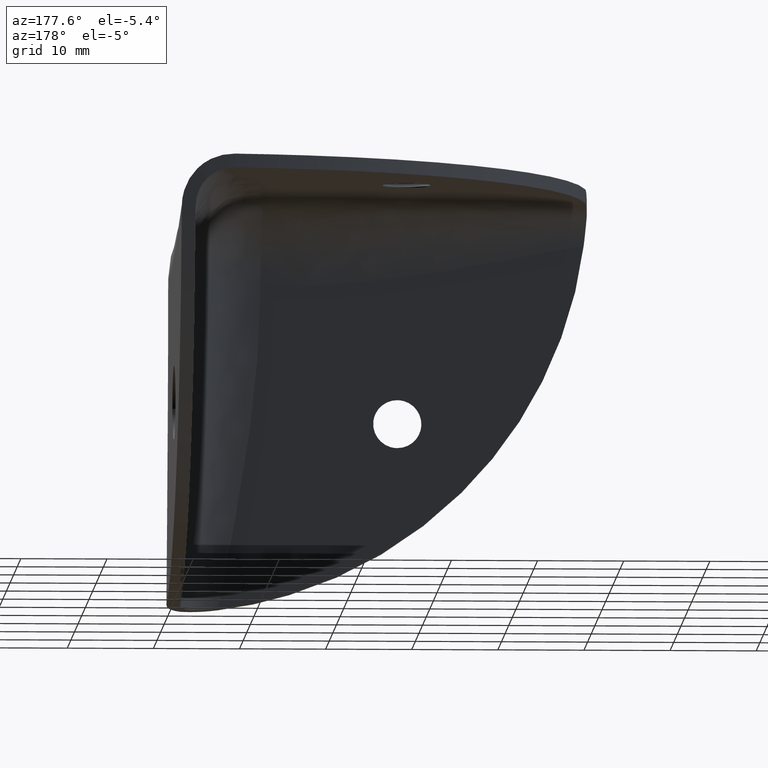
[diagram: clean part render]
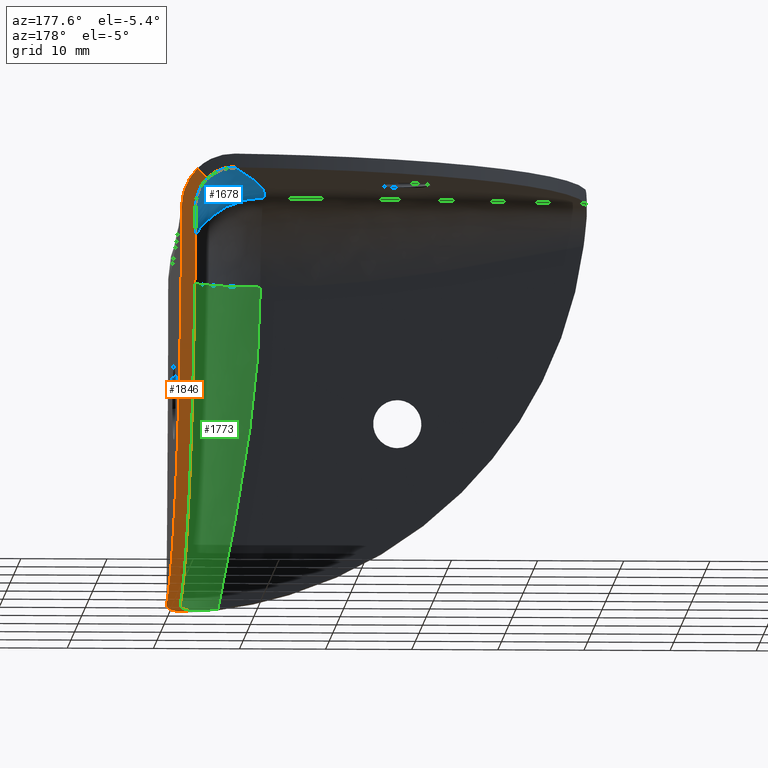
[diagram: same view with three faces highlighted in distinct colors, each labeled with its STEP entity id]
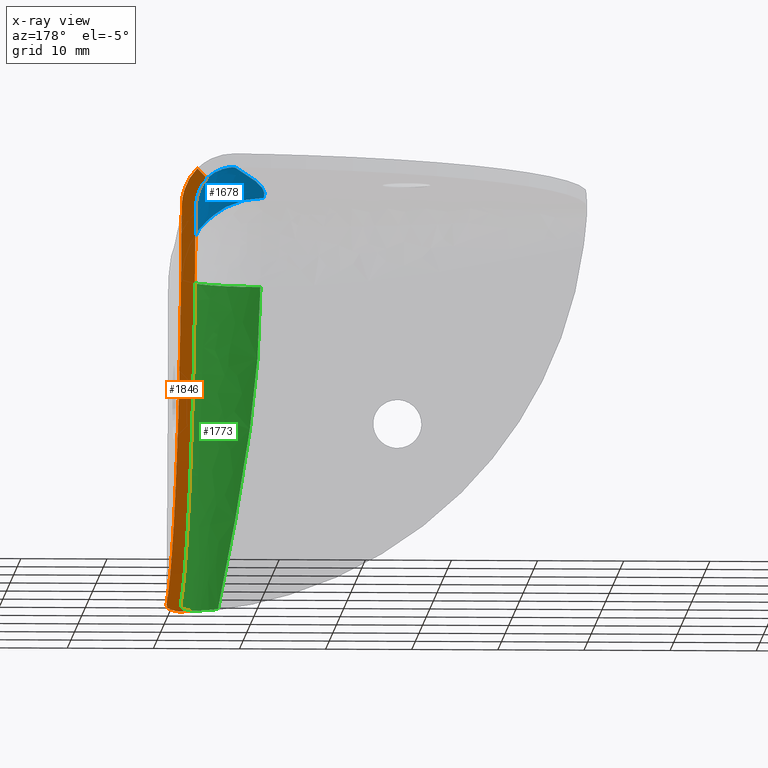
[diagram: x-ray of the same camera — body ghosted, the three highlighted faces saturated]
A machine part, auxiliary view with three faces highlighted in distinct colors.
The next image is the same camera in x-ray (body ghosted, the three faces saturated) — at least one of them is partly hidden behind the body in this view.
Their STEP definitions:

[orange] entity #1846 — the highlighted face is a freeform B-spline surface patch.
#1089=CARTESIAN_POINT('',(0.0,6.171573241230070,0.361694426275122));
#1090=VERTEX_POINT('',#1089);
#1091=CARTESIAN_POINT('',(-1.787017889713275,1.787017889713065,0.006370814517681));
#1092=VERTEX_POINT('',#1091);
#1093=CARTESIAN_POINT('',(0.0,6.171573241230070,0.361694426275120));
#1094=CARTESIAN_POINT('',(3.811648E-018,5.765225800642737,0.310318890520815));
#1095=CARTESIAN_POINT('',(-0.037825961681421,5.364675682616409,0.264850308663229));
#1096=CARTESIAN_POINT('',(-0.151043309121893,4.772576887062907,0.204794528968002));
#1097=CARTESIAN_POINT('',(-0.198253625120499,4.576674703107338,0.186135452911814));
#1098=CARTESIAN_POINT('',(-0.283799129057972,4.285114519458263,0.160107344394750));
#1099=CARTESIAN_POINT('',(-0.314773355935752,4.188310656096630,0.151758107257319));
#1100=CARTESIAN_POINT('',(-0.381780867085784,3.995493889272083,0.135700521255313));
#1101=CARTESIAN_POINT('',(-0.417621305122688,3.900057184478893,0.128040828110907));
#1102=CARTESIAN_POINT('',(-0.607641946293509,3.429592338959095,0.091633003630207));
#1103=CARTESIAN_POINT('',(-0.794674716813616,3.072565172450305,0.068366570746644));
#1104=CARTESIAN_POINT('',(-1.127685643311944,2.566129723612154,0.040318470146774));
#1105=CARTESIAN_POINT('',(-1.247488678062399,2.402199889963529,0.032115772756458));
#1106=CARTESIAN_POINT('',(-1.440936848726538,2.163948242052584,0.021319898137595));
#1107=CARTESIAN_POINT('',(-1.507517149028760,2.086060887909089,0.017984650431483));
#1108=CARTESIAN_POINT('',(-1.644376988174122,1.933936801425587,0.011817975053551));
#1109=CARTESIAN_POINT('',(-1.714731345938658,1.859607161586465,0.008982322632971));
#1110=CARTESIAN_POINT('',(-1.787017889713275,1.787017889713065,0.006370814517681));
#1111=B_SPLINE_CURVE_WITH_KNOTS('',3,(#1093,#1094,#1095,#1096,#1097,#1098,#1099,#1100,#1101,#1102,#1103,#1104,#1105,#1106,#1107,#1108,#1109,#1110),.UNSPECIFIED.,.F.,.U.,(4,2,2,2,2,2,2,2,4),(0.0,0.250000000000000,0.375000000000000,0.437500000000000,0.500000000000000,0.750000000000000,0.875000000000000,0.937500000000000,1.0),.UNSPECIFIED.);
#1112=EDGE_CURVE('',#1090,#1092,#1111,.T.);
#1258=CARTESIAN_POINT('',(-1.787017889713220,48.993629185482199,47.212982110286902));
#1259=VERTEX_POINT('',#1258);
#1289=CARTESIAN_POINT('',(0.0,48.638305573724800,42.828426758769943));
#1290=VERTEX_POINT('',#1289);
#1298=CARTESIAN_POINT('',(-1.787017889713220,48.993629185482199,47.212982110286902));
#1299=CARTESIAN_POINT('',(-1.498166744652732,48.983193811620772,46.922921288384707));
#1300=CARTESIAN_POINT('',(-1.243456440835818,48.969326293050493,46.608903361447140));
#1301=CARTESIAN_POINT('',(-0.910254561642432,48.941419643462297,46.103704322942512));
#1302=CARTESIAN_POINT('',(-0.807390679276624,48.930929862106687,45.929567406641503));
#1303=CARTESIAN_POINT('',(-0.665622032419021,48.913123437820467,45.659614546134911));
#1304=CARTESIAN_POINT('',(-0.620341377787739,48.906823354246477,45.567911068069073));
#1305=CARTESIAN_POINT('',(-0.534693213898582,48.893581953755529,45.382965288554352));
#1306=CARTESIAN_POINT('',(-0.494341028246447,48.886647773631509,45.289798557933352));
#1307=CARTESIAN_POINT('',(-0.304643336238732,48.850355499663728,44.820587091258091));
#1308=CARTESIAN_POINT('',(-0.191177692169317,48.816142147734439,44.434498624151608));
#1309=CARTESIAN_POINT('',(-0.095764144555557,48.765966512150307,43.938995724072022));
#1310=CARTESIAN_POINT('',(-0.079021341737152,48.755560307242668,43.839245040477422));
#1311=CARTESIAN_POINT('',(-0.050254967596804,48.733979300421517,43.638434331225831));
#1312=CARTESIAN_POINT('',(-0.038232320396408,48.722793773603492,43.537290271417760));
#1313=CARTESIAN_POINT('',(-0.009501825970828,48.688296454444412,43.234041921480440));
#1314=CARTESIAN_POINT('',(-3.764591E-019,48.663973618821089,43.031444484553667));
#1315=CARTESIAN_POINT('',(-8.994743E-032,48.638305573724800,42.828426758769943));
#1316=B_SPLINE_CURVE_WITH_KNOTS('',3,(#1298,#1299,#1300,#1301,#1302,#1303,#1304,#1305,#1306,#1307,#1308,#1309,#1310,#1311,#1312,#1313,#1314,#1315),.UNSPECIFIED.,.F.,.U.,(4,2,2,2,2,2,2,2,4),(0.0,0.250000000000006,0.375000000000009,0.437500000000011,0.500000000000012,0.750000000000007,0.812500000000005,0.875000000000003,1.0),.UNSPECIFIED.);
#1317=EDGE_CURVE('',#1259,#1290,#1316,.T.);
#1613=CARTESIAN_POINT('',(-1.600000000000045,48.638305573724800,42.828426758769893));
#1614=VERTEX_POINT('',#1613);
#1615=CARTESIAN_POINT('',(-2.921517854645630,48.939642014672401,46.078482145354400));
#1616=VERTEX_POINT('',#1615);
#1617=CARTESIAN_POINT('',(-1.600000000000000,48.638305573724800,42.828426758769893));
#1618=CARTESIAN_POINT('',(-1.600000000000000,48.676399125952223,43.129722253273670));
#1619=CARTESIAN_POINT('',(-1.628068771047924,48.711090758160537,43.426609868739099));
#1620=CARTESIAN_POINT('',(-1.711874550237434,48.758422107328393,43.865354029422349));
#1621=CARTESIAN_POINT('',(-1.746804400192824,48.773413707032567,44.010496811412239));
#1622=CARTESIAN_POINT('',(-1.810059572723921,48.794764406540949,44.226485710960119));
#1623=CARTESIAN_POINT('',(-1.832957732101233,48.801691813472480,44.298193952743752));
#1624=CARTESIAN_POINT('',(-1.882481785787459,48.815174123604109,44.441016307222839));
#1625=CARTESIAN_POINT('',(-1.908998395906818,48.821696642976498,44.511793174033564));
#1626=CARTESIAN_POINT('',(-2.049509457692358,48.853089127616009,44.860526206572430));
#1627=CARTESIAN_POINT('',(-2.187766650009441,48.874508228740297,45.125182611053447));
#1628=CARTESIAN_POINT('',(-2.433896886023942,48.902158938780488,45.500603336545268));
#1629=CARTESIAN_POINT('',(-2.522439481897943,48.910626162689368,45.622126229844092));
#1630=CARTESIAN_POINT('',(-2.665411761968103,48.922311389294727,45.798744133314173));
#1631=CARTESIAN_POINT('',(-2.714693204422323,48.926030025310013,45.856569523243252));
#1632=CARTESIAN_POINT('',(-2.815958730771519,48.933097360572283,45.969456231054508));
#1633=CARTESIAN_POINT('',(-2.868020416633476,48.936452549680951,46.024614982949750));
#1634=CARTESIAN_POINT('',(-2.921517854645640,48.939642014672401,46.078482145354400));
#1635=B_SPLINE_CURVE_WITH_KNOTS('',3,(#1617,#1618,#1619,#1620,#1621,#1622,#1623,#1624,#1625,#1626,#1627,#1628,#1629,#1630,#1631,#1632,#1633,#1634),.UNSPECIFIED.,.F.,.U.,(4,2,2,2,2,2,2,2,4),(0.0,0.249999999999999,0.374999999999998,0.437499999999998,0.499999999999998,0.749999999999997,0.874999999999998,0.937499999999999,1.0),.UNSPECIFIED.);
#1636=EDGE_CURVE('',#1614,#1616,#1635,.T.);
#1710=CARTESIAN_POINT('',(-2.921517854645710,2.921517854645550,0.060357985327472));
#1711=VERTEX_POINT('',#1710);
#1741=CARTESIAN_POINT('',(-1.600000000000045,6.171573241230060,0.361694426275129));
#1742=VERTEX_POINT('',#1741);
#1750=CARTESIAN_POINT('',(-2.921517854645710,2.921517854645550,0.060357985327472));
#1751=CARTESIAN_POINT('',(-2.707762418320189,3.136750569169289,0.073101875618812));
#1752=CARTESIAN_POINT('',(-2.519411453900043,3.369705315939708,0.088315406987648));
#1753=CARTESIAN_POINT('',(-2.273093145407968,3.744309027991136,0.115866667781409));
#1754=CARTESIAN_POINT('',(-2.197066494656227,3.873403535824759,0.125841701455587));
#1755=CARTESIAN_POINT('',(-2.092294564915308,4.073478489210118,0.142152655943249));
#1756=CARTESIAN_POINT('',(-2.058833843750226,4.141432019602928,0.147830944279625));
#1757=CARTESIAN_POINT('',(-1.995526305869961,4.278502862893377,0.159579880818338));
#1758=CARTESIAN_POINT('',(-1.965697994869248,4.347549708596315,0.165643571052354));
#1759=CARTESIAN_POINT('',(-1.825463431075606,4.695274347283851,0.196935472670225));
#1760=CARTESIAN_POINT('',(-1.741544766805343,4.981356270856757,0.225077078095008));
#1761=CARTESIAN_POINT('',(-1.670936264946145,5.348482885107264,0.264637893179401));
#1762=CARTESIAN_POINT('',(-1.658543362431144,5.422388526900576,0.272769720850947));
#1763=CARTESIAN_POINT('',(-1.637246045324856,5.571167962649388,0.289487374396028));
#1764=CARTESIAN_POINT('',(-1.628340181835924,5.646118915679210,0.298082801459789));
#1765=CARTESIAN_POINT('',(-1.607050383908320,5.870877662669373,0.324386927984706));
#1766=CARTESIAN_POINT('',(-1.600000000000000,6.021058212789243,0.342664430136730));
#1767=CARTESIAN_POINT('',(-1.600000000000045,6.171573241230060,0.361694426275129));
#1768=B_SPLINE_CURVE_WITH_KNOTS('',3,(#1750,#1751,#1752,#1753,#1754,#1755,#1756,#1757,#1758,#1759,#1760,#1761,#1762,#1763,#1764,#1765,#1766,#1767),.UNSPECIFIED.,.F.,.U.,(4,2,2,2,2,2,2,2,4),(0.0,0.250000000000002,0.375000000000003,0.437500000000003,0.500000000000003,0.750000000000003,0.812500000000002,0.875000000000002,1.0),.UNSPECIFIED.);
#1769=EDGE_CURVE('',#1711,#1742,#1768,.T.);
#1774=CARTESIAN_POINT('',(-2.994555801011853,49.023866857642332,48.598755006412347));
#1775=CARTESIAN_POINT('',(0.074863821409411,49.023866857642332,48.598755006412347));
#1776=CARTESIAN_POINT('',(-2.994555801011853,48.638726018474642,-1.599539419217752));
#1777=CARTESIAN_POINT('',(0.074863821409411,48.638726018474642,-1.599539419217752));
#1778=CARTESIAN_POINT('',(-2.994555801011853,-1.535570033305680,-0.000442043651826));
#1779=CARTESIAN_POINT('',(0.074863821409411,-1.535570033305680,-0.000442043651826));
#1787=(BOUNDED_SURFACE()B_SPLINE_SURFACE(1,2,((#1774,#1776,#1778),(#1775,#1777,#1779)),.UNSPECIFIED.,.F.,.F.,.U.)B_SPLINE_SURFACE_WITH_KNOTS((2,2),(3,3),(0.0,3.069419622421265),(0.0,82.578612360852958),.UNSPECIFIED.)GEOMETRIC_REPRESENTATION_ITEM()RATIONAL_B_SPLINE_SURFACE(((1.0,0.696928150367863,0.995494185340716),(1.0,0.696928150367863,0.995494185340716)))REPRESENTATION_ITEM('')SURFACE());
#1788=CARTESIAN_POINT('',(0.0,6.171573241230070,0.361694426275122));
#1789=CARTESIAN_POINT('',(0.0,43.871773767184884,5.128226232815121));
#1790=CARTESIAN_POINT('',(0.0,48.638305573724793,42.828426758769943));
#1798=(BOUNDED_CURVE()B_SPLINE_CURVE(2,(#1788,#1789,#1790),.UNSPECIFIED.,.F.,.U.)CURVE()GEOMETRIC_REPRESENTATION_ITEM()QUASI_UNIFORM_CURVE()RATIONAL_B_SPLINE_CURVE((1.0,0.790217237857496,1.0))REPRESENTATION_ITEM(''));
#1799=EDGE_CURVE('',#1090,#1290,#1798,.T.);
#1800=ORIENTED_EDGE('',*,*,#1799,.F.);
#1801=ORIENTED_EDGE('',*,*,#1112,.T.);
#1802=CARTESIAN_POINT('',(-1.787017889713275,1.787017889713065,0.006370814517681));
#1803=CARTESIAN_POINT('',(-2.354580738869195,2.354580738868985,0.026789740734487));
#1804=CARTESIAN_POINT('',(-2.921517854645710,2.921517854645550,0.060357985327472));
#1812=(BOUNDED_CURVE()B_SPLINE_CURVE(2,(#1802,#1803,#1804),.UNSPECIFIED.,.F.,.U.)CURVE()GEOMETRIC_REPRESENTATION_ITEM()QUASI_UNIFORM_CURVE()RATIONAL_B_SPLINE_CURVE((1.0,0.999932837975840,1.0))REPRESENTATION_ITEM(''));
#1813=EDGE_CURVE('',#1092,#1711,#1812,.T.);
#1814=ORIENTED_EDGE('',*,*,#1813,.T.);
#1815=ORIENTED_EDGE('',*,*,#1769,.T.);
#1816=CARTESIAN_POINT('',(-1.600000000000045,6.171573241230060,0.361694426275122));
#1817=CARTESIAN_POINT('',(-1.600000000000045,43.871773767184855,5.128226232815121));
#1818=CARTESIAN_POINT('',(-1.600000000000045,48.638305573724793,42.828426758769901));
#1826=(BOUNDED_CURVE()B_SPLINE_CURVE(2,(#1816,#1817,#1818),.UNSPECIFIED.,.F.,.U.)CURVE()GEOMETRIC_REPRESENTATION_ITEM()QUASI_UNIFORM_CURVE()RATIONAL_B_SPLINE_CURVE((1.0,0.790217237857497,1.0))REPRESENTATION_ITEM(''));
#1827=EDGE_CURVE('',#1742,#1614,#1826,.T.);
#1828=ORIENTED_EDGE('',*,*,#1827,.T.);
#1829=ORIENTED_EDGE('',*,*,#1636,.T.);
#1830=CARTESIAN_POINT('',(-1.787017889713220,48.993629185482199,47.212982110286902));
#1831=CARTESIAN_POINT('',(-2.354580738869635,48.973210259265393,46.645419261130456));
#1832=CARTESIAN_POINT('',(-2.921517854645630,48.939642014672401,46.078482145354400));
#1840=(BOUNDED_CURVE()B_SPLINE_CURVE(2,(#1830,#1831,#1832),.UNSPECIFIED.,.F.,.U.)CURVE()GEOMETRIC_REPRESENTATION_ITEM()QUASI_UNIFORM_CURVE()RATIONAL_B_SPLINE_CURVE((1.0,0.999932837977774,1.0))REPRESENTATION_ITEM(''));
#1841=EDGE_CURVE('',#1259,#1616,#1840,.T.);
#1842=ORIENTED_EDGE('',*,*,#1841,.F.);
#1843=ORIENTED_EDGE('',*,*,#1317,.T.);
#1844=EDGE_LOOP('',(#1800,#1801,#1814,#1815,#1828,#1829,#1842,#1843));
#1845=FACE_OUTER_BOUND('',#1844,.T.);
#1846=ADVANCED_FACE('',(#1845),#1787,.T.);

[blue] entity #1678 — the highlighted face is a freeform B-spline surface patch.
#1471=CARTESIAN_POINT('',(-11.100000000000000,11.100000000000000,47.399999999999999));
#1472=VERTEX_POINT('',#1471);
#1552=CARTESIAN_POINT('',(-1.600000000000000,11.100000000000000,37.900000000000013));
#1553=VERTEX_POINT('',#1552);
#1554=CARTESIAN_POINT('',(-11.100000000000000,11.100000000000000,47.399999999999999));
#1555=CARTESIAN_POINT('',(-1.599999999999993,11.099999999999980,47.399999999999977));
#1556=CARTESIAN_POINT('',(-1.600000000000000,11.100000000000000,37.900000000000013));
#1564=(BOUNDED_CURVE()B_SPLINE_CURVE(2,(#1554,#1555,#1556),.UNSPECIFIED.,.F.,.U.)CURVE()GEOMETRIC_REPRESENTATION_ITEM()QUASI_UNIFORM_CURVE()RATIONAL_B_SPLINE_CURVE((1.0,0.707106781186548,1.0))REPRESENTATION_ITEM(''));
#1565=EDGE_CURVE('',#1472,#1553,#1564,.T.);
#1584=CARTESIAN_POINT('',(-6.067015857501230,49.166679866760447,47.399999999999999));
#1585=CARTESIAN_POINT('',(-1.599999999999993,49.166679866760447,47.399999999999977));
#1586=CARTESIAN_POINT('',(-1.600000000000000,49.166679866760447,42.932984142498768));
#1587=CARTESIAN_POINT('',(-6.078010571667487,49.111119911173638,47.399999999999999));
#1588=CARTESIAN_POINT('',(-1.599999999999993,49.111119911173624,47.399999999999977));
#1589=CARTESIAN_POINT('',(-1.600000000000000,49.111119911173638,42.921989428332523));
#1590=CARTESIAN_POINT('',(-6.089005285833744,49.055559955586823,47.399999999999999));
#1591=CARTESIAN_POINT('',(-1.599999999999993,49.055559955586808,47.399999999999977));
#1592=CARTESIAN_POINT('',(-1.600000000000000,49.055559955586823,42.910994714166257));
#1593=CARTESIAN_POINT('',(-6.100000000000001,49.0,47.399999999999999));
#1594=CARTESIAN_POINT('',(-1.599999999999993,49.0,47.399999999999977));
#1595=CARTESIAN_POINT('',(-1.600000000000000,49.0,42.899999999999999));
#1596=CARTESIAN_POINT('',(-8.600000000000000,36.366666666666653,47.399999999999999));
#1597=CARTESIAN_POINT('',(-1.599999999999993,36.366666666666674,47.399999999999977));
#1598=CARTESIAN_POINT('',(-1.600000000000000,36.366666666666653,40.399999999999999));
#1599=CARTESIAN_POINT('',(-11.100000000000000,23.733333333333348,47.399999999999999));
#1600=CARTESIAN_POINT('',(-1.599999999999993,23.733333333333277,47.399999999999977));
#1601=CARTESIAN_POINT('',(-1.600000000000000,23.733333333333348,37.900000000000013));
#1602=CARTESIAN_POINT('',(-11.100000000000000,11.100000000000000,47.399999999999999));
#1603=CARTESIAN_POINT('',(-1.599999999999993,11.099999999999980,47.399999999999977));
#1604=CARTESIAN_POINT('',(-1.600000000000000,11.100000000000000,37.900000000000013));
#1612=(BOUNDED_SURFACE()B_SPLINE_SURFACE(2,3,((#1584,#1587,#1590,#1593,#1596,#1599,#1602),(#1585,#1588,#1591,#1594,#1597,#1600,#1603),(#1586,#1589,#1592,#1595,#1598,#1601,#1604)),.UNSPECIFIED.,.F.,.F.,.U.)B_SPLINE_SURFACE_WITH_KNOTS((3,3),(4,3,4),(0.0,15.740115370177611),(0.0,0.169912129171719,38.804870392386569),.UNSPECIFIED.)GEOMETRIC_REPRESENTATION_ITEM()RATIONAL_B_SPLINE_SURFACE(((1.0,1.0,1.0,1.0,1.0,1.0,1.0),(0.707106781186548,0.707106781186548,0.707106781186548,0.707106781186548,0.707106781186548,0.707106781186548,0.707106781186548),(1.0,1.0,1.0,1.0,1.0,1.0,1.0)))REPRESENTATION_ITEM('')SURFACE());
#1613=CARTESIAN_POINT('',(-1.600000000000045,48.638305573724800,42.828426758769893));
#1614=VERTEX_POINT('',#1613);
#1615=CARTESIAN_POINT('',(-2.921517854645630,48.939642014672401,46.078482145354400));
#1616=VERTEX_POINT('',#1615);
#1617=CARTESIAN_POINT('',(-1.600000000000000,48.638305573724800,42.828426758769893));
#1618=CARTESIAN_POINT('',(-1.600000000000000,48.676399125952223,43.129722253273670));
#1619=CARTESIAN_POINT('',(-1.628068771047924,48.711090758160537,43.426609868739099));
#1620=CARTESIAN_POINT('',(-1.711874550237434,48.758422107328393,43.865354029422349));
#1621=CARTESIAN_POINT('',(-1.746804400192824,48.773413707032567,44.010496811412239));
#1622=CARTESIAN_POINT('',(-1.810059572723921,48.794764406540949,44.226485710960119));
#1623=CARTESIAN_POINT('',(-1.832957732101233,48.801691813472480,44.298193952743752));
#1624=CARTESIAN_POINT('',(-1.882481785787459,48.815174123604109,44.441016307222839));
#1625=CARTESIAN_POINT('',(-1.908998395906818,48.821696642976498,44.511793174033564));
#1626=CARTESIAN_POINT('',(-2.049509457692358,48.853089127616009,44.860526206572430));
#1627=CARTESIAN_POINT('',(-2.187766650009441,48.874508228740297,45.125182611053447));
#1628=CARTESIAN_POINT('',(-2.433896886023942,48.902158938780488,45.500603336545268));
#1629=CARTESIAN_POINT('',(-2.522439481897943,48.910626162689368,45.622126229844092));
#1630=CARTESIAN_POINT('',(-2.665411761968103,48.922311389294727,45.798744133314173));
#1631=CARTESIAN_POINT('',(-2.714693204422323,48.926030025310013,45.856569523243252));
#1632=CARTESIAN_POINT('',(-2.815958730771519,48.933097360572283,45.969456231054508));
#1633=CARTESIAN_POINT('',(-2.868020416633476,48.936452549680951,46.024614982949750));
#1634=CARTESIAN_POINT('',(-2.921517854645640,48.939642014672401,46.078482145354400));
#1635=B_SPLINE_CURVE_WITH_KNOTS('',3,(#1617,#1618,#1619,#1620,#1621,#1622,#1623,#1624,#1625,#1626,#1627,#1628,#1629,#1630,#1631,#1632,#1633,#1634),.UNSPECIFIED.,.F.,.U.,(4,2,2,2,2,2,2,2,4),(0.0,0.249999999999999,0.374999999999998,0.437499999999998,0.499999999999998,0.749999999999997,0.874999999999998,0.937499999999999,1.0),.UNSPECIFIED.);
#1636=EDGE_CURVE('',#1614,#1616,#1635,.T.);
#1637=ORIENTED_EDGE('',*,*,#1636,.F.);
#1638=CARTESIAN_POINT('',(-1.600000000000000,11.100000000000000,37.900000000000013));
#1639=CARTESIAN_POINT('',(-1.600000000000000,23.612768524574950,37.900000000000013));
#1640=CARTESIAN_POINT('',(-1.600000000000000,36.125537049149848,40.352510747882462));
#1641=CARTESIAN_POINT('',(-1.600000000000000,48.638305573724800,42.828426758769908));
#1642=B_SPLINE_CURVE_WITH_KNOTS('',3,(#1638,#1639,#1640,#1641),.UNSPECIFIED.,.F.,.U.,(4,4),(0.380964617847546,1.0),.UNSPECIFIED.);
#1643=EDGE_CURVE('',#1553,#1614,#1642,.T.);
#1644=ORIENTED_EDGE('',*,*,#1643,.F.);
#1645=ORIENTED_EDGE('',*,*,#1565,.F.);
#1646=CARTESIAN_POINT('',(-6.171573241230081,48.638305573724800,47.399999999999999));
#1647=VERTEX_POINT('',#1646);
#1648=CARTESIAN_POINT('',(-6.171573241230091,48.638305573724793,47.400000000000020));
#1649=CARTESIAN_POINT('',(-8.647489252117541,36.125537049149841,47.400000000000013));
#1650=CARTESIAN_POINT('',(-11.100000000000000,23.612768524574950,47.400000000000013));
#1651=CARTESIAN_POINT('',(-11.100000000000000,11.100000000000000,47.399999999999999));
#1652=B_SPLINE_CURVE_WITH_KNOTS('',3,(#1648,#1649,#1650,#1651),.UNSPECIFIED.,.F.,.U.,(4,4),(0.380964617847546,1.0),.UNSPECIFIED.);
#1653=EDGE_CURVE('',#1647,#1472,#1652,.T.);
#1654=ORIENTED_EDGE('',*,*,#1653,.F.);
#1655=CARTESIAN_POINT('',(-2.921517854645630,48.939642014672401,46.078482145354400));
#1656=CARTESIAN_POINT('',(-3.136750569169370,48.926898124381047,46.292237581679913));
#1657=CARTESIAN_POINT('',(-3.369705315939812,48.911684593012261,46.480588546100030));
#1658=CARTESIAN_POINT('',(-3.744309027991237,48.884133332218482,46.726906854592073));
#1659=CARTESIAN_POINT('',(-3.873403535824854,48.874158298544309,46.802933505343802));
#1660=CARTESIAN_POINT('',(-4.073478489210210,48.857847344056658,46.907705435084722));
#1661=CARTESIAN_POINT('',(-4.141432019603020,48.852169055720339,46.941166156249793));
#1662=CARTESIAN_POINT('',(-4.278502862893464,48.840420119181587,47.004473694130049));
#1663=CARTESIAN_POINT('',(-4.347549708596388,48.834356428947487,47.034302005130762));
#1664=CARTESIAN_POINT('',(-4.695274347283916,48.803064527329653,47.174536568924403));
#1665=CARTESIAN_POINT('',(-4.981356270856815,48.774922921904889,47.258455233194667));
#1666=CARTESIAN_POINT('',(-5.348482885107303,48.735362106820489,47.329063735053879));
#1667=CARTESIAN_POINT('',(-5.422388526900624,48.727230279148927,47.341456637568832));
#1668=CARTESIAN_POINT('',(-5.571167962649430,48.710512625603862,47.362753954675107));
#1669=CARTESIAN_POINT('',(-5.646118915679251,48.701917198540123,47.371659818164062));
#1670=CARTESIAN_POINT('',(-5.870877662669406,48.675613072015210,47.392949616091691));
#1671=CARTESIAN_POINT('',(-6.021058212789266,48.657335569863193,47.399999999999991));
#1672=CARTESIAN_POINT('',(-6.171573241230091,48.638305573724800,47.399999999999999));
#1673=B_SPLINE_CURVE_WITH_KNOTS('',3,(#1655,#1656,#1657,#1658,#1659,#1660,#1661,#1662,#1663,#1664,#1665,#1666,#1667,#1668,#1669,#1670,#1671,#1672),.UNSPECIFIED.,.F.,.U.,(4,2,2,2,2,2,2,2,4),(0.0,0.250000000000003,0.375000000000004,0.437500000000004,0.500000000000003,0.749999999999999,0.812499999999999,0.875000000000000,1.0),.UNSPECIFIED.);
#1674=EDGE_CURVE('',#1616,#1647,#1673,.T.);
#1675=ORIENTED_EDGE('',*,*,#1674,.F.);
#1676=EDGE_LOOP('',(#1637,#1644,#1645,#1654,#1675));
#1677=FACE_OUTER_BOUND('',#1676,.T.);
#1678=ADVANCED_FACE('',(#1677),#1612,.T.);

[green] entity #1773 — the highlighted face is a freeform B-spline surface patch.
#1480=CARTESIAN_POINT('',(-11.100000000000000,1.600000000000000,37.900000000000013));
#1481=VERTEX_POINT('',#1480);
#1552=CARTESIAN_POINT('',(-1.600000000000000,11.100000000000000,37.900000000000013));
#1553=VERTEX_POINT('',#1552);
#1567=CARTESIAN_POINT('',(-1.600000000000000,11.100000000000000,37.900000000000013));
#1568=CARTESIAN_POINT('',(-1.599999999999993,1.599999999999993,37.899999999999984));
#1569=CARTESIAN_POINT('',(-11.100000000000000,1.600000000000000,37.900000000000013));
#1577=(BOUNDED_CURVE()B_SPLINE_CURVE(2,(#1567,#1568,#1569),.UNSPECIFIED.,.F.,.U.)CURVE()GEOMETRIC_REPRESENTATION_ITEM()QUASI_UNIFORM_CURVE()RATIONAL_B_SPLINE_CURVE((1.0,0.707106781186548,1.0))REPRESENTATION_ITEM(''));
#1578=EDGE_CURVE('',#1553,#1481,#1577,.T.);
#1679=CARTESIAN_POINT('',(-11.100000000000000,1.600000000000000,37.900000000000013));
#1680=CARTESIAN_POINT('',(-1.599999999999993,1.599999999999993,37.899999999999984));
#1681=CARTESIAN_POINT('',(-1.600000000000000,11.100000000000000,37.900000000000013));
#1682=CARTESIAN_POINT('',(-11.100000000000000,1.600000000000000,25.266666666666652));
#1683=CARTESIAN_POINT('',(-1.599999999999993,1.599999999999993,25.266666666666648));
#1684=CARTESIAN_POINT('',(-1.600000000000000,11.100000000000000,25.266666666666652));
#1685=CARTESIAN_POINT('',(-8.600000000000000,1.600000000000000,12.633333333333320));
#1686=CARTESIAN_POINT('',(-1.599999999999993,1.599999999999993,12.633333333333322));
#1687=CARTESIAN_POINT('',(-1.600000000000000,8.600000000000000,12.633333333333320));
#1688=CARTESIAN_POINT('',(-6.100000000000001,1.600000000000000,-2.524847E-015));
#1689=CARTESIAN_POINT('',(-1.599999999999993,1.599999999999993,-2.602085E-015));
#1690=CARTESIAN_POINT('',(-1.600000000000000,6.100000000000001,-2.524847E-015));
#1691=CARTESIAN_POINT('',(-6.089005285833736,1.600000000000000,-0.055559955586857));
#1692=CARTESIAN_POINT('',(-1.599999999999993,1.599999999999993,-0.055559955586857));
#1693=CARTESIAN_POINT('',(-1.600000000000000,6.089005285833736,-0.055559955586857));
#1694=CARTESIAN_POINT('',(-6.078010571667472,1.600000000000000,-0.111119911173711));
#1695=CARTESIAN_POINT('',(-1.599999999999993,1.599999999999993,-0.111119911173711));
#1696=CARTESIAN_POINT('',(-1.600000000000000,6.078010571667472,-0.111119911173711));
#1697=CARTESIAN_POINT('',(-6.067015857501207,1.600000000000000,-0.166679866760566));
#1698=CARTESIAN_POINT('',(-1.599999999999993,1.599999999999993,-0.166679866760566));
#1699=CARTESIAN_POINT('',(-1.600000000000000,6.067015857501207,-0.166679866760566));
#1707=(BOUNDED_SURFACE()B_SPLINE_SURFACE(2,3,((#1679,#1682,#1685,#1688,#1691,#1694,#1697),(#1680,#1683,#1686,#1689,#1692,#1695,#1698),(#1681,#1684,#1687,#1690,#1693,#1696,#1699)),.UNSPECIFIED.,.F.,.F.,.U.)B_SPLINE_SURFACE_WITH_KNOTS((3,3),(4,3,4),(0.0,15.740115370177611),(0.0,38.634958263210393,38.804870392382199),.UNSPECIFIED.)GEOMETRIC_REPRESENTATION_ITEM()RATIONAL_B_SPLINE_SURFACE(((1.0,1.0,1.0,1.0,1.0,1.0,1.0),(0.707106781186548,0.707106781186548,0.707106781186548,0.707106781186548,0.707106781186548,0.707106781186548,0.707106781186548),(1.0,1.0,1.0,1.0,1.0,1.0,1.0)))REPRESENTATION_ITEM('')SURFACE());
#1708=CARTESIAN_POINT('',(-6.171573241230060,1.600000000000045,0.361694426275095));
#1709=VERTEX_POINT('',#1708);
#1710=CARTESIAN_POINT('',(-2.921517854645710,2.921517854645550,0.060357985327472));
#1711=VERTEX_POINT('',#1710);
#1712=CARTESIAN_POINT('',(-6.171573241230060,1.600000000000045,0.361694426275095));
#1713=CARTESIAN_POINT('',(-5.870277746726313,1.600000000000000,0.323600874047682));
#1714=CARTESIAN_POINT('',(-5.573390131260894,1.628068771047924,0.288909241839367));
#1715=CARTESIAN_POINT('',(-5.134645970577667,1.711874550237427,0.241577892671509));
#1716=CARTESIAN_POINT('',(-4.989503188587762,1.746804400192813,0.226586292967292));
#1717=CARTESIAN_POINT('',(-4.773514289039886,1.810059572723904,0.205235593458901));
#1718=CARTESIAN_POINT('',(-4.701806047256286,1.832957732101213,0.198308186527435));
#1719=CARTESIAN_POINT('',(-4.558983692777205,1.882481785787435,0.184825876395794));
#1720=CARTESIAN_POINT('',(-4.488206825966449,1.908998395906798,0.178303357023386));
#1721=CARTESIAN_POINT('',(-4.139473793427616,2.049509457692328,0.146910872383889));
#1722=CARTESIAN_POINT('',(-3.874817388946608,2.187766650009399,0.125491771259576));
#1723=CARTESIAN_POINT('',(-3.499396663454791,2.433896886023879,0.097841061219399));
#1724=CARTESIAN_POINT('',(-3.377873770155980,2.522439481897869,0.089373837310528));
#1725=CARTESIAN_POINT('',(-3.201255866685886,2.665411761968018,0.077688610705161));
#1726=CARTESIAN_POINT('',(-3.143430476756815,2.714693204422237,0.073969974689887));
#1727=CARTESIAN_POINT('',(-3.030543768945557,2.815958730771423,0.066902639427618));
#1728=CARTESIAN_POINT('',(-2.975385017050358,2.868020416633394,0.063547450318933));
#1729=CARTESIAN_POINT('',(-2.921517854645710,2.921517854645555,0.060357985327472));
#1730=B_SPLINE_CURVE_WITH_KNOTS('',3,(#1712,#1713,#1714,#1715,#1716,#1717,#1718,#1719,#1720,#1721,#1722,#1723,#1724,#1725,#1726,#1727,#1728,#1729),.UNSPECIFIED.,.F.,.U.,(4,2,2,2,2,2,2,2,4),(0.0,0.250000000000000,0.375000000000000,0.437500000000000,0.500000000000000,0.750000000000000,0.875000000000000,0.937500000000000,1.0),.UNSPECIFIED.);
#1731=EDGE_CURVE('',#1709,#1711,#1730,.T.);
#1732=ORIENTED_EDGE('',*,*,#1731,.F.);
#1733=CARTESIAN_POINT('',(-11.100000000000000,1.600000000000000,37.900000000000013));
#1734=CARTESIAN_POINT('',(-11.100000000000000,1.600000000000000,25.387231475425018));
#1735=CARTESIAN_POINT('',(-8.647489252117524,1.600000000000000,12.874462950850051));
#1736=CARTESIAN_POINT('',(-6.171573241230060,1.600000000000045,0.361694426275095));
#1737=B_SPLINE_CURVE_WITH_KNOTS('',3,(#1733,#1734,#1735,#1736),.UNSPECIFIED.,.F.,.U.,(4,4),(0.0,0.619035382152456),.UNSPECIFIED.);
#1738=EDGE_CURVE('',#1481,#1709,#1737,.T.);
#1739=ORIENTED_EDGE('',*,*,#1738,.F.);
#1740=ORIENTED_EDGE('',*,*,#1578,.F.);
#1741=CARTESIAN_POINT('',(-1.600000000000045,6.171573241230060,0.361694426275129));
#1742=VERTEX_POINT('',#1741);
#1743=CARTESIAN_POINT('',(-1.600000000000045,6.171573241230060,0.361694426275129));
#1744=CARTESIAN_POINT('',(-1.600000000000000,8.647489252117529,12.874462950850070));
#1745=CARTESIAN_POINT('',(-1.600000000000000,11.100000000000000,25.387231475425029));
#1746=CARTESIAN_POINT('',(-1.600000000000000,11.100000000000000,37.900000000000013));
#1747=B_SPLINE_CURVE_WITH_KNOTS('',3,(#1743,#1744,#1745,#1746),.UNSPECIFIED.,.F.,.U.,(4,4),(0.0,0.619035382152455),.UNSPECIFIED.);
#1748=EDGE_CURVE('',#1742,#1553,#1747,.T.);
#1749=ORIENTED_EDGE('',*,*,#1748,.F.);
#1750=CARTESIAN_POINT('',(-2.921517854645710,2.921517854645550,0.060357985327472));
#1751=CARTESIAN_POINT('',(-2.707762418320189,3.136750569169289,0.073101875618812));
#1752=CARTESIAN_POINT('',(-2.519411453900043,3.369705315939708,0.088315406987648));
#1753=CARTESIAN_POINT('',(-2.273093145407968,3.744309027991136,0.115866667781409));
#1754=CARTESIAN_POINT('',(-2.197066494656227,3.873403535824759,0.125841701455587));
#1755=CARTESIAN_POINT('',(-2.092294564915308,4.073478489210118,0.142152655943249));
#1756=CARTESIAN_POINT('',(-2.058833843750226,4.141432019602928,0.147830944279625));
#1757=CARTESIAN_POINT('',(-1.995526305869961,4.278502862893377,0.159579880818338));
#1758=CARTESIAN_POINT('',(-1.965697994869248,4.347549708596315,0.165643571052354));
#1759=CARTESIAN_POINT('',(-1.825463431075606,4.695274347283851,0.196935472670225));
#1760=CARTESIAN_POINT('',(-1.741544766805343,4.981356270856757,0.225077078095008));
#1761=CARTESIAN_POINT('',(-1.670936264946145,5.348482885107264,0.264637893179401));
#1762=CARTESIAN_POINT('',(-1.658543362431144,5.422388526900576,0.272769720850947));
#1763=CARTESIAN_POINT('',(-1.637246045324856,5.571167962649388,0.289487374396028));
#1764=CARTESIAN_POINT('',(-1.628340181835924,5.646118915679210,0.298082801459789));
#1765=CARTESIAN_POINT('',(-1.607050383908320,5.870877662669373,0.324386927984706));
#1766=CARTESIAN_POINT('',(-1.600000000000000,6.021058212789243,0.342664430136730));
#1767=CARTESIAN_POINT('',(-1.600000000000045,6.171573241230060,0.361694426275129));
#1768=B_SPLINE_CURVE_WITH_KNOTS('',3,(#1750,#1751,#1752,#1753,#1754,#1755,#1756,#1757,#1758,#1759,#1760,#1761,#1762,#1763,#1764,#1765,#1766,#1767),.UNSPECIFIED.,.F.,.U.,(4,2,2,2,2,2,2,2,4),(0.0,0.250000000000002,0.375000000000003,0.437500000000003,0.500000000000003,0.750000000000003,0.812500000000002,0.875000000000002,1.0),.UNSPECIFIED.);
#1769=EDGE_CURVE('',#1711,#1742,#1768,.T.);
#1770=ORIENTED_EDGE('',*,*,#1769,.F.);
#1771=EDGE_LOOP('',(#1732,#1739,#1740,#1749,#1770));
#1772=FACE_OUTER_BOUND('',#1771,.T.);
#1773=ADVANCED_FACE('',(#1772),#1707,.T.);